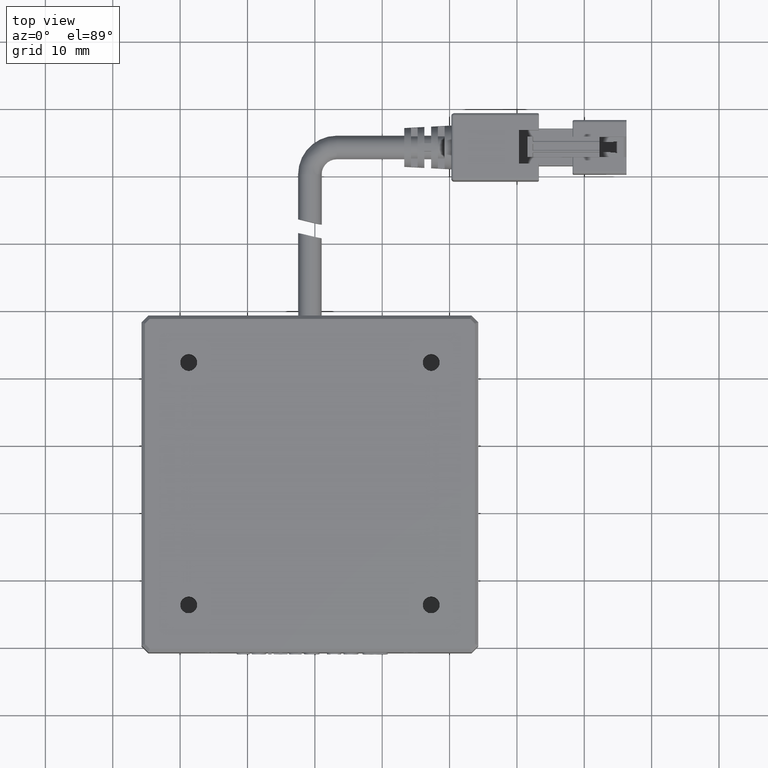
[diagram: clean part render]
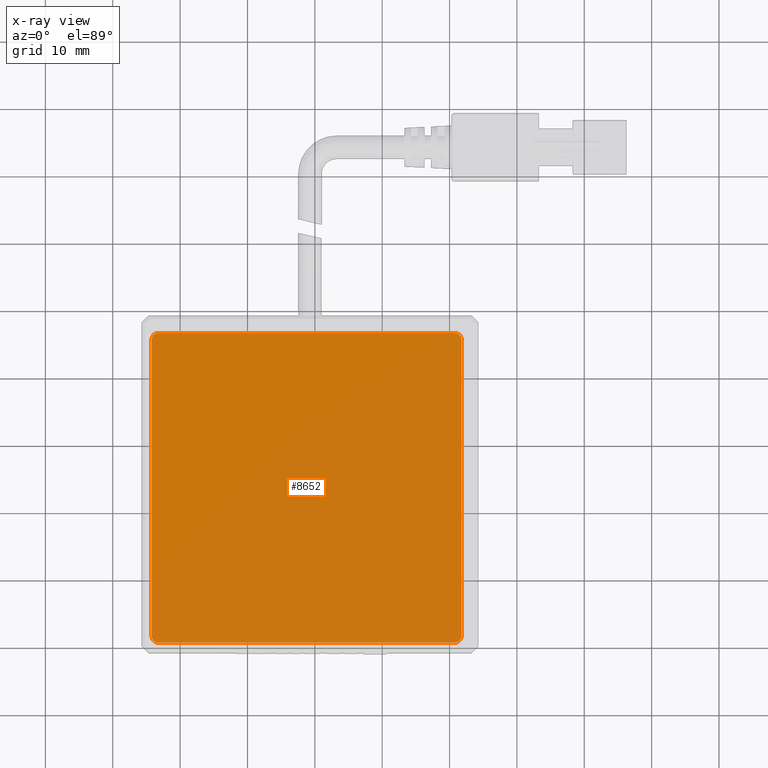
[diagram: x-ray — body ghosted, one internal face saturated and labeled with its STEP entity id]
A machine part, top view, then the same camera in x-ray: the body is ghosted and one INTERNAL B-rep face — a face not visible from any outside direction — is saturated and labeled: STEP entity #8652.
In plain terms, the highlighted planar face has unit normal (0, 0, -1).
Its self-contained STEP definition (entity closure, byte-faithful):
#680 = DIRECTION ( 'NONE',  ( 0.0000000000000000000, 0.0000000000000000000, -1.000000000000000000 ) ) ;
#889 = CIRCLE ( 'NONE', #10827, 1.000000000000000900 ) ;
#1081 = CARTESIAN_POINT ( 'NONE',  ( 40.76702531645570800, -8.288860759493660500, -3.250000000000000900 ) ) ;
#3250 = DIRECTION ( 'NONE',  ( -0.0000000000000000000, -1.000000000000000000, -0.0000000000000000000 ) ) ;
#3651 = VERTEX_POINT ( 'NONE', #26661 ) ;
#3823 = EDGE_CURVE ( 'NONE', #3651, #12023, #16862, .T. ) ;
#4306 = DIRECTION ( 'NONE',  ( -1.000000000000000000, 0.0000000000000000000, 0.0000000000000000000 ) ) ;
#5351 = CARTESIAN_POINT ( 'NONE',  ( -3.232974683544290100, 36.71113924050634100, -3.250000000000000900 ) ) ;
#5644 = CARTESIAN_POINT ( 'NONE',  ( 40.76702531645570800, 35.71113924050634100, -3.250000000000000900 ) ) ;
#6234 = EDGE_CURVE ( 'NONE', #37677, #25813, #26504, .T. ) ;
#7030 = PLANE ( 'NONE',  #33026 ) ;
#8652 = ADVANCED_FACE ( 'NONE', ( #35108 ), #7030, .T. ) ;
#8664 = ORIENTED_EDGE ( 'NONE', *, *, #32458, .T. ) ;
#8900 = DIRECTION ( 'NONE',  ( -1.000000000000000000, 0.0000000000000000000, 0.0000000000000000000 ) ) ;
#8906 = DIRECTION ( 'NONE',  ( -0.0000000000000000000, 0.0000000000000000000, 1.000000000000000000 ) ) ;
#8945 = ORIENTED_EDGE ( 'NONE', *, *, #35960, .T. ) ;
#9170 = CARTESIAN_POINT ( 'NONE',  ( -3.232974683544290100, 36.71113924050634100, -3.250000000000000900 ) ) ;
#10142 = VECTOR ( 'NONE', #3250, 1000.000000000000000 ) ;
#10366 = CARTESIAN_POINT ( 'NONE',  ( -3.232974683544290100, 35.71113924050634100, -3.250000000000000900 ) ) ;
#10827 = AXIS2_PLACEMENT_3D ( 'NONE', #5644, #28468, #8900 ) ;
#11121 = DIRECTION ( 'NONE',  ( -1.000000000000000000, 0.0000000000000000000, 0.0000000000000000000 ) ) ;
#11186 = VECTOR ( 'NONE', #28175, 1000.000000000000000 ) ;
#11471 = VECTOR ( 'NONE', #11121, 1000.000000000000000 ) ;
#12023 = VERTEX_POINT ( 'NONE', #40188 ) ;
#13646 = DIRECTION ( 'NONE',  ( -1.000000000000000000, 0.0000000000000000000, 0.0000000000000000000 ) ) ;
#14805 = DIRECTION ( 'NONE',  ( 0.0000000000000000000, 1.000000000000000000, 0.0000000000000000000 ) ) ;
#16630 = EDGE_CURVE ( 'NONE', #39012, #25813, #17237, .T. ) ;
#16862 = LINE ( 'NONE', #27806, #41830 ) ;
#17237 = CIRCLE ( 'NONE', #23188, 1.000000000000000900 ) ;
#17346 = CIRCLE ( 'NONE', #30320, 0.9999999999999974500 ) ;
#19745 = ORIENTED_EDGE ( 'NONE', *, *, #31535, .F. ) ;
#19878 = LINE ( 'NONE', #5351, #11186 ) ;
#20143 = CARTESIAN_POINT ( 'NONE',  ( 40.76702531645570800, 35.71113924050634100, -3.250000000000000900 ) ) ;
#21170 = LINE ( 'NONE', #27397, #11471 ) ;
#21275 = ORIENTED_EDGE ( 'NONE', *, *, #16630, .F. ) ;
#22753 = CARTESIAN_POINT ( 'NONE',  ( 41.76702531645570100, 35.71113924050634100, -3.250000000000000900 ) ) ;
#23188 = AXIS2_PLACEMENT_3D ( 'NONE', #1081, #23838, #4306 ) ;
#23311 = ORIENTED_EDGE ( 'NONE', *, *, #26903, .T. ) ;
#23418 = DIRECTION ( 'NONE',  ( -1.000000000000000000, 0.0000000000000000000, 0.0000000000000000000 ) ) ;
#23838 = DIRECTION ( 'NONE',  ( -0.0000000000000000000, 0.0000000000000000000, 1.000000000000000000 ) ) ;
#25419 = EDGE_LOOP ( 'NONE', ( #19745, #8664, #8945, #29377, #21275, #23311, #37976, #35610 ) ) ;
#25813 = VERTEX_POINT ( 'NONE', #30197 ) ;
#26504 = LINE ( 'NONE', #22753, #10142 ) ;
#26661 = CARTESIAN_POINT ( 'NONE',  ( -4.232974683544283900, -8.288860759493660500, -3.250000000000000900 ) ) ;
#26851 = CARTESIAN_POINT ( 'NONE',  ( 41.76702531645570100, 35.71113924050634100, -3.250000000000000900 ) ) ;
#26903 = EDGE_CURVE ( 'NONE', #39012, #27406, #21170, .T. ) ;
#27397 = CARTESIAN_POINT ( 'NONE',  ( -3.232974683544290100, -9.288860759493662300, -3.250000000000000900 ) ) ;
#27406 = VERTEX_POINT ( 'NONE', #37462 ) ;
#27806 = CARTESIAN_POINT ( 'NONE',  ( -4.232974683544283900, 35.71113924050634100, -3.250000000000000900 ) ) ;
#28175 = DIRECTION ( 'NONE',  ( 1.000000000000000000, 0.0000000000000000000, 0.0000000000000000000 ) ) ;
#28468 = DIRECTION ( 'NONE',  ( 0.0000000000000000000, -0.0000000000000000000, -1.000000000000000000 ) ) ;
#28475 = CARTESIAN_POINT ( 'NONE',  ( -3.232974683544290100, -8.288860759493660500, -3.250000000000000900 ) ) ;
#29377 = ORIENTED_EDGE ( 'NONE', *, *, #6234, .T. ) ;
#29524 = CARTESIAN_POINT ( 'NONE',  ( 40.76702531645570800, 36.71113924050634100, -3.250000000000000900 ) ) ;
#30197 = CARTESIAN_POINT ( 'NONE',  ( 41.76702531645570100, -8.288860759493660500, -3.250000000000000900 ) ) ;
#30320 = AXIS2_PLACEMENT_3D ( 'NONE', #28475, #8906, #31745 ) ;
#31535 = EDGE_CURVE ( 'NONE', #40360, #12023, #31807, .T. ) ;
#31745 = DIRECTION ( 'NONE',  ( -1.000000000000000000, 0.0000000000000000000, 0.0000000000000000000 ) ) ;
#31807 = CIRCLE ( 'NONE', #33247, 0.9999999999999974500 ) ;
#32458 = EDGE_CURVE ( 'NONE', #40360, #39500, #19878, .T. ) ;
#33026 = AXIS2_PLACEMENT_3D ( 'NONE', #20143, #680, #23418 ) ;
#33217 = DIRECTION ( 'NONE',  ( -0.0000000000000000000, 0.0000000000000000000, 1.000000000000000000 ) ) ;
#33247 = AXIS2_PLACEMENT_3D ( 'NONE', #10366, #33217, #13646 ) ;
#35108 = FACE_OUTER_BOUND ( 'NONE', #25419, .T. ) ;
#35610 = ORIENTED_EDGE ( 'NONE', *, *, #3823, .T. ) ;
#35960 = EDGE_CURVE ( 'NONE', #39500, #37677, #889, .T. ) ;
#37331 = EDGE_CURVE ( 'NONE', #3651, #27406, #17346, .T. ) ;
#37462 = CARTESIAN_POINT ( 'NONE',  ( -3.232974683544290100, -9.288860759493662300, -3.250000000000000900 ) ) ;
#37677 = VERTEX_POINT ( 'NONE', #26851 ) ;
#37976 = ORIENTED_EDGE ( 'NONE', *, *, #37331, .F. ) ;
#39012 = VERTEX_POINT ( 'NONE', #39909 ) ;
#39500 = VERTEX_POINT ( 'NONE', #29524 ) ;
#39909 = CARTESIAN_POINT ( 'NONE',  ( 40.76702531645570800, -9.288860759493662300, -3.250000000000000900 ) ) ;
#40188 = CARTESIAN_POINT ( 'NONE',  ( -4.232974683544283900, 35.71113924050634100, -3.250000000000000900 ) ) ;
#40360 = VERTEX_POINT ( 'NONE', #9170 ) ;
#41830 = VECTOR ( 'NONE', #14805, 1000.000000000000000 ) ;